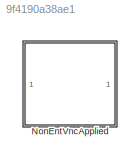
MODEL slx_9f4190a38ae1
KIND library
CONFIG AbsTol = auto
CONFIG EnableMultiTasking = off
CONFIG FixedStep = auto
CONFIG MaxStep = auto
CONFIG MinStep = auto
CONFIG RelTol = 1e-3
CONFIG SampleTimeConstraint = Unconstrained
CONFIG SolverName = VariableStepAuto
CONFIG StartTime = 0.0
CONFIG StopTime = 10.0
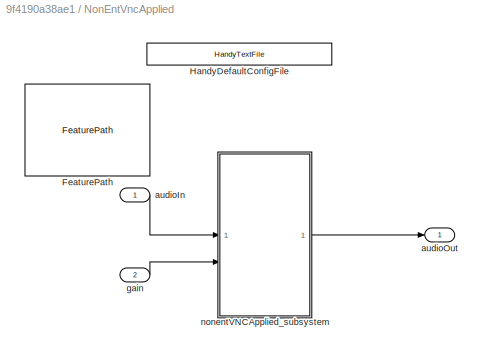
BLOCK [SubSystem] NonEntVncApplied
BLOCK [Reference] NonEntVncApplied/FeaturePath  REF=FeaturePath/FeaturePath
  SourceBlock = FeaturePath/FeaturePath
  SourceProductName = Bose Talaria
  SourceType = Talaria Feature Path
BLOCK [Reference] NonEntVncApplied/HandyDefaultConfigFile  REF=HandyTextFile/HandyTextFile
  SourceBlock = HandyTextFile/HandyTextFile
  SourceProductName = Bose Talaria
  SourceType = Talaria Handy Text File
BLOCK [Inport] NonEntVncApplied/audioIn
BLOCK [Outport] NonEntVncApplied/audioOut
  VectorParamsAs1DForOutWhenUnconnected = off
BLOCK [Inport] NonEntVncApplied/gain
  Port = 2
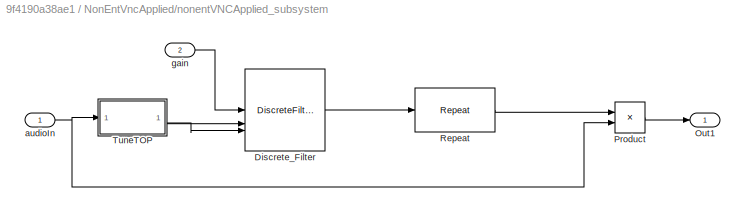
BLOCK [SubSystem] NonEntVncApplied/nonentVNCApplied_subsystem
BLOCK [DiscreteFilter] NonEntVncApplied/nonentVNCApplied_subsystem/Discrete_Filter
  Denominator = den
  DenominatorSource = Input port
  FilterStructure = Direct form II transposed
  InputPortMap = u0,p1,p3
  InputProcessing = Columns as channels (frame based)
  Numerator = num
  NumeratorSource = Input port
  a0EqualsOne = on
BLOCK [Outport] NonEntVncApplied/nonentVNCApplied_subsystem/Out1
  VectorParamsAs1DForOutWhenUnconnected = off
BLOCK [Product] NonEntVncApplied/nonentVNCApplied_subsystem/Product
BLOCK [Reference] NonEntVncApplied/nonentVNCApplied_subsystem/Repeat  REF=dspsigops/Repeat
  SourceBlock = dspsigops/Repeat
  SourceType = Repeat
  UserDataPersistent = on
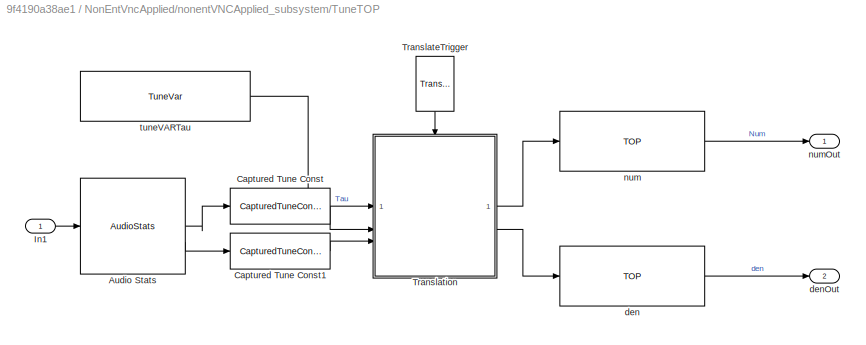
BLOCK [SubSystem] NonEntVncApplied/nonentVNCApplied_subsystem/TuneTOP
BLOCK [Reference] NonEntVncApplied/nonentVNCApplied_subsystem/TuneTOP/Audio Stats  REF=AudioStats/AudioStats
  SourceBlock = AudioStats/AudioStats
  SourceProductName = Bose Talaria
  SourceType = Talaria Audio Statistics
BLOCK [Reference] NonEntVncApplied/nonentVNCApplied_subsystem/TuneTOP/Captured Tune Const  REF=TuneVar/CapturedTuneConst
  SourceBlock = TuneVar/CapturedTuneConst
  SourceProductName = Bose Talaria
  SourceType = Talaria Captured Constant
BLOCK [Reference] NonEntVncApplied/nonentVNCApplied_subsystem/TuneTOP/Captured Tune Const1  REF=TuneVar/CapturedTuneConst
  SourceBlock = TuneVar/CapturedTuneConst
  SourceProductName = Bose Talaria
  SourceType = Talaria Captured Constant
BLOCK [Inport] NonEntVncApplied/nonentVNCApplied_subsystem/TuneTOP/In1
BLOCK [Reference] NonEntVncApplied/nonentVNCApplied_subsystem/TuneTOP/TranslateTrigger  REF=TuneVar/TranslateTrigger
  NameLocation = left
  SourceBlock = TuneVar/TranslateTrigger
  SourceProductName = Bose Talaria
  SourceType = Talaria Translate Trigger
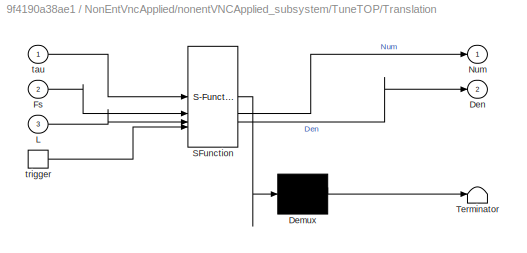
BLOCK [SubSystem] NonEntVncApplied/nonentVNCApplied_subsystem/TuneTOP/Translation
  ErrorFcn = Stateflow.Translate.translate
  PermitHierarchicalResolution = ExplicitOnly
  SFBlockType = MATLAB Function
  TreatAsAtomicUnit = on
BLOCK [Demux] NonEntVncApplied/nonentVNCApplied_subsystem/TuneTOP/Translation/ Demux 
  Outputs = 1
BLOCK [S-Function] NonEntVncApplied/nonentVNCApplied_subsystem/TuneTOP/Translation/ SFunction 
  EnableBusSupport = off
  FunctionName = sf_sfun
  PortCounts = [4 3]
  SFcnIsStateOwnerBlock = off
  SFunctionDeploymentMode = off
  Tag = Stateflow S-Function 2
BLOCK [Terminator] NonEntVncApplied/nonentVNCApplied_subsystem/TuneTOP/Translation/ Terminator 
BLOCK [Outport] NonEntVncApplied/nonentVNCApplied_subsystem/TuneTOP/Translation/Den
  Port = 2
BLOCK [Inport] NonEntVncApplied/nonentVNCApplied_subsystem/TuneTOP/Translation/Fs
  Port = 2
BLOCK [Inport] NonEntVncApplied/nonentVNCApplied_subsystem/TuneTOP/Translation/L
  Port = 3
BLOCK [Outport] NonEntVncApplied/nonentVNCApplied_subsystem/TuneTOP/Translation/Num
  VectorParamsAs1DForOutWhenUnconnected = off
BLOCK [Inport] NonEntVncApplied/nonentVNCApplied_subsystem/TuneTOP/Translation/tau
BLOCK [TriggerPort] NonEntVncApplied/nonentVNCApplied_subsystem/TuneTOP/Translation/trigger
  ShowOutputPort = on
  StatesWhenEnabling = held
  TriggerType = function-call
  VariantControl = Variant
BLOCK [Reference] NonEntVncApplied/nonentVNCApplied_subsystem/TuneTOP/den  REF=TOP/TOP
  SourceBlock = TOP/TOP
  SourceProductName = Bose Talaria
  SourceType = Talaria Target Overlay Parameter
BLOCK [Outport] NonEntVncApplied/nonentVNCApplied_subsystem/TuneTOP/denOut
  Port = 2
  VectorParamsAs1DForOutWhenUnconnected = off
BLOCK [Reference] NonEntVncApplied/nonentVNCApplied_subsystem/TuneTOP/num  REF=TOP/TOP
  SourceBlock = TOP/TOP
  SourceProductName = Bose Talaria
  SourceType = Talaria Target Overlay Parameter
BLOCK [Outport] NonEntVncApplied/nonentVNCApplied_subsystem/TuneTOP/numOut
  VectorParamsAs1DForOutWhenUnconnected = off
BLOCK [Reference] NonEntVncApplied/nonentVNCApplied_subsystem/TuneTOP/tuneVARTau  REF=TuneVar/TuneVar
  SourceBlock = TuneVar/TuneVar
  SourceProductName = Bose Talaria
  SourceType = Talaria Tune Variable
BLOCK [Inport] NonEntVncApplied/nonentVNCApplied_subsystem/audioIn
BLOCK [Inport] NonEntVncApplied/nonentVNCApplied_subsystem/gain
  Port = 2
CHART NonEntVncApplied/nonentVNCApplied_subsystem/TuneTOP/Translation states=1 transitions=1
  STATE_LABEL 'eML_blk_kernel()'
  STATE_LABEL "SCRIPT:\nfunction [Num, Den]  = fcn(tau, Fs, L)\n\nf0 = 1/tau.Value;   % Approximation of cutoff freq from lpf filter time constant\n\nfs_lpf = Fs/L;        % lpf filtter sample rate\n\n% [Num, Den]= butter(1,2*f0/fs_lpf);  % butter() doesn't work with dynamic parameters\n[Num, Den] = firstOrderButter(fs_lpf,f0);  % Calculation of lpf filter coefficients\n"
CHART  states=0 transitions=0
